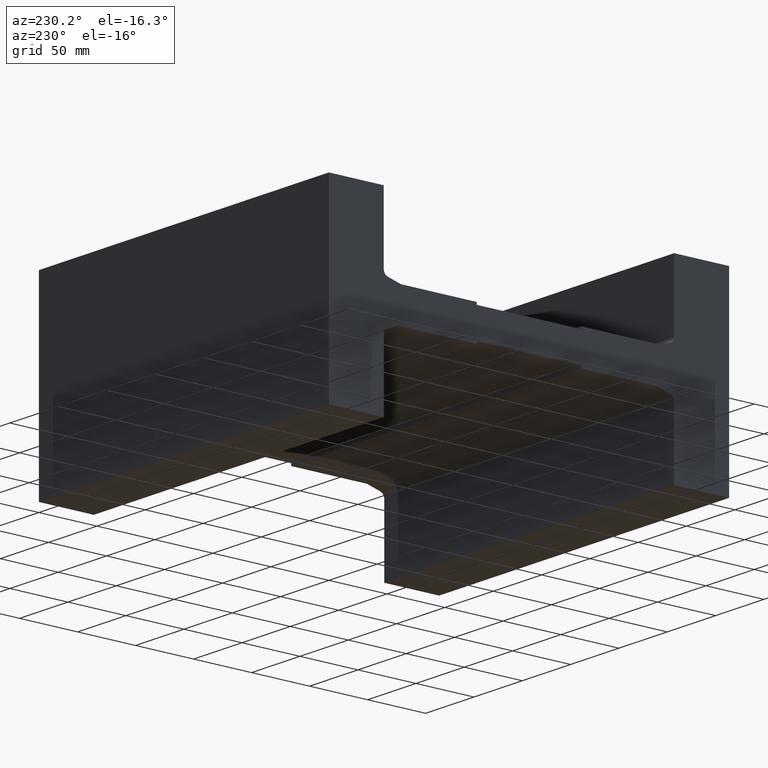
[diagram: clean part render]
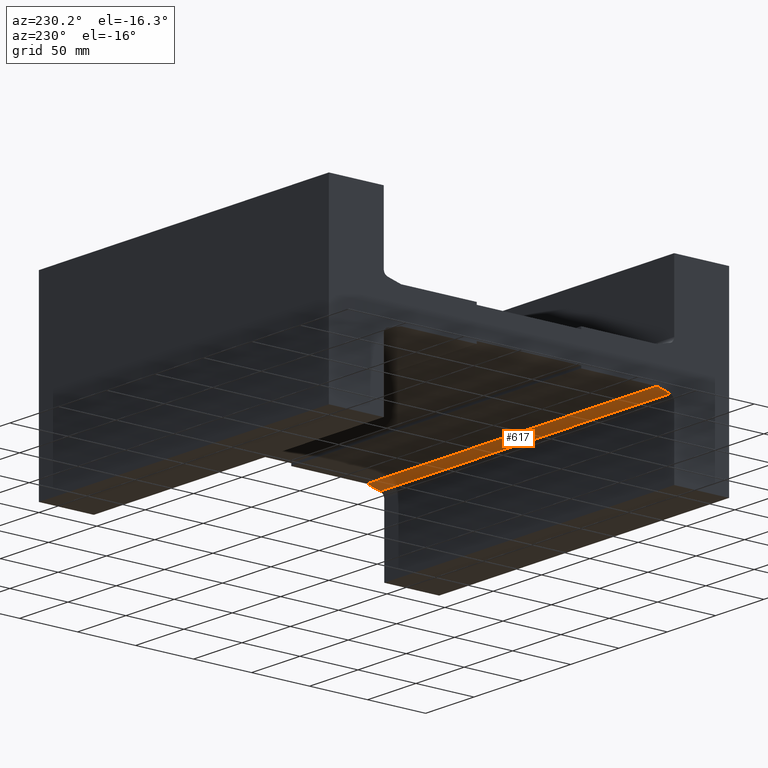
[diagram: same view with one face highlighted and labeled with its STEP entity id]
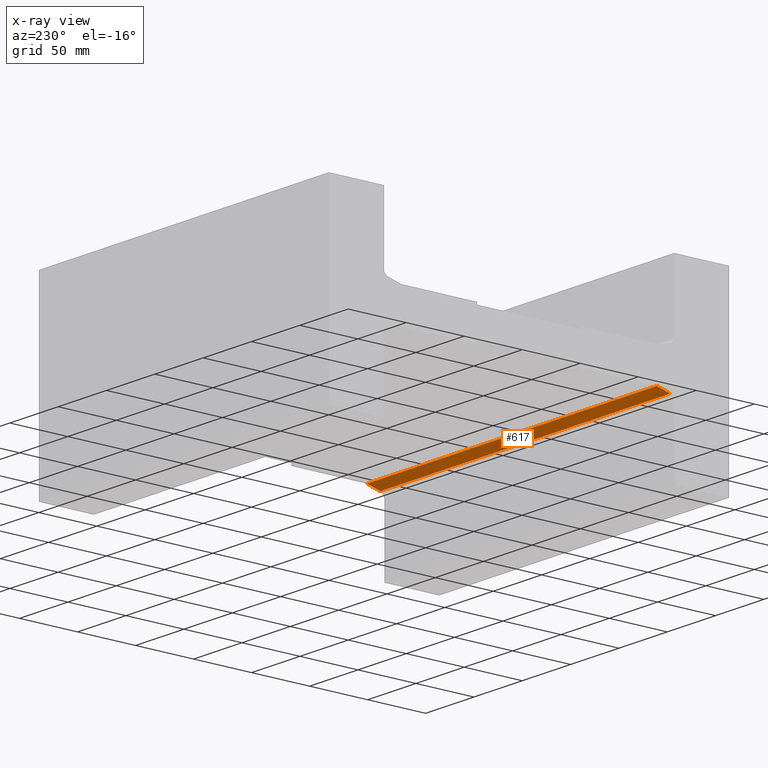
[diagram: x-ray of the same camera — body ghosted, the highlighted face saturated]
A machine part, auxiliary view. The second image highlights one B-rep face of the part: STEP entity #617.
The next image is the same camera in x-ray: the body ghosted, the highlighted face saturated — about 0% of this face is hidden behind the body in this view.
In plain terms, the highlighted planar face has unit normal (0, 0.2588, -0.9659).
Its self-contained STEP definition (entity closure, byte-faithful):
#24=PLANE('',#675);
#54=FACE_OUTER_BOUND('',#84,.T.);
#84=EDGE_LOOP('',(#456,#457,#458,#459));
#100=LINE('',#851,#176);
#136=LINE('',#938,#212);
#137=LINE('',#940,#213);
#138=LINE('',#941,#214);
#176=VECTOR('',#697,10.);
#212=VECTOR('',#775,10.);
#213=VECTOR('',#776,10.);
#214=VECTOR('',#777,10.);
#261=VERTEX_POINT('',#848);
#262=VERTEX_POINT('',#850);
#292=VERTEX_POINT('',#937);
#293=VERTEX_POINT('',#939);
#317=EDGE_CURVE('',#261,#262,#100,.T.);
#360=EDGE_CURVE('',#292,#261,#136,.T.);
#361=EDGE_CURVE('',#292,#293,#137,.T.);
#362=EDGE_CURVE('',#293,#262,#138,.T.);
#456=ORIENTED_EDGE('',*,*,#360,.F.);
#457=ORIENTED_EDGE('',*,*,#361,.T.);
#458=ORIENTED_EDGE('',*,*,#362,.T.);
#459=ORIENTED_EDGE('',*,*,#317,.F.);
#617=ADVANCED_FACE('',(#54),#24,.T.);
#675=AXIS2_PLACEMENT_3D('',#936,#773,#774);
#697=DIRECTION('',(1.,-1.69176980447317E-15,4.39325214218709E-16));
#773=DIRECTION('center_axis',(0.,0.25881904510252,-0.965925826289069));
#774=DIRECTION('ref_axis',(-1.,0.,0.));
#775=DIRECTION('',(-2.44307062173612E-15,-0.965925826289068,-0.25881904510252));
#776=DIRECTION('',(1.,0.,0.));
#777=DIRECTION('',(0.,-0.965925826289069,-0.25881904510252));
#848=CARTESIAN_POINT('',(-2.74228757185758E-13,-294.142331416493,-17.5659634625791));
#850=CARTESIAN_POINT('',(300.,-294.142331416494,-17.565963462579));
#851=CARTESIAN_POINT('',(-2.74228757185758E-13,-294.142331416493,-17.5659634625791));
#936=CARTESIAN_POINT('Origin',(0.,-282.7,-14.4999999999999));
#937=CARTESIAN_POINT('',(0.,-282.7,-14.4999999999999));
#938=CARTESIAN_POINT('',(-7.58021749990771E-13,-282.699999999999,-14.5000000000008));
#939=CARTESIAN_POINT('',(300.,-282.7,-14.4999999999999));
#940=CARTESIAN_POINT('',(0.,-282.7,-14.4999999999999));
#941=CARTESIAN_POINT('',(300.,-282.7,-14.4999999999999));